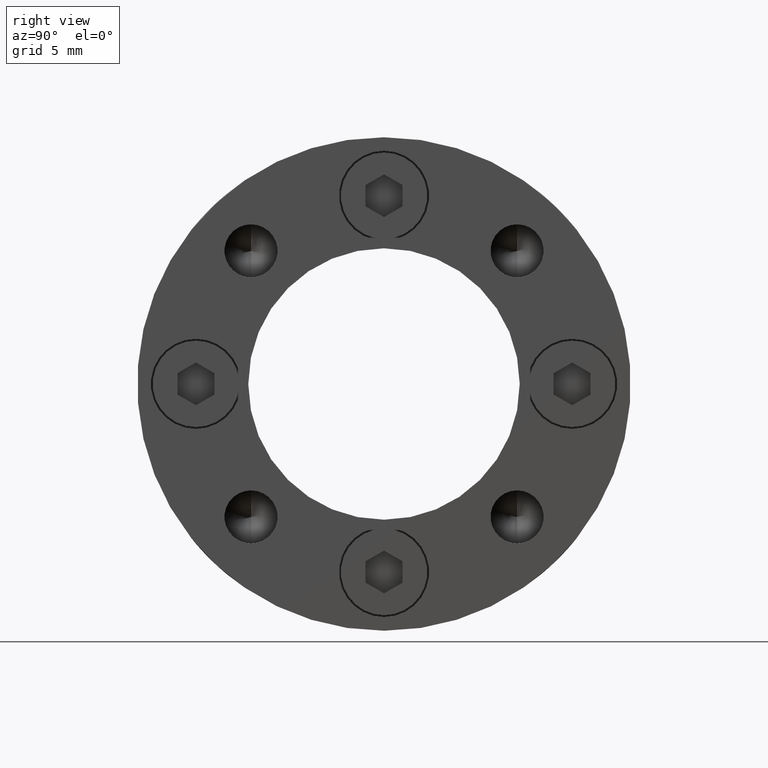
[diagram: clean part render]
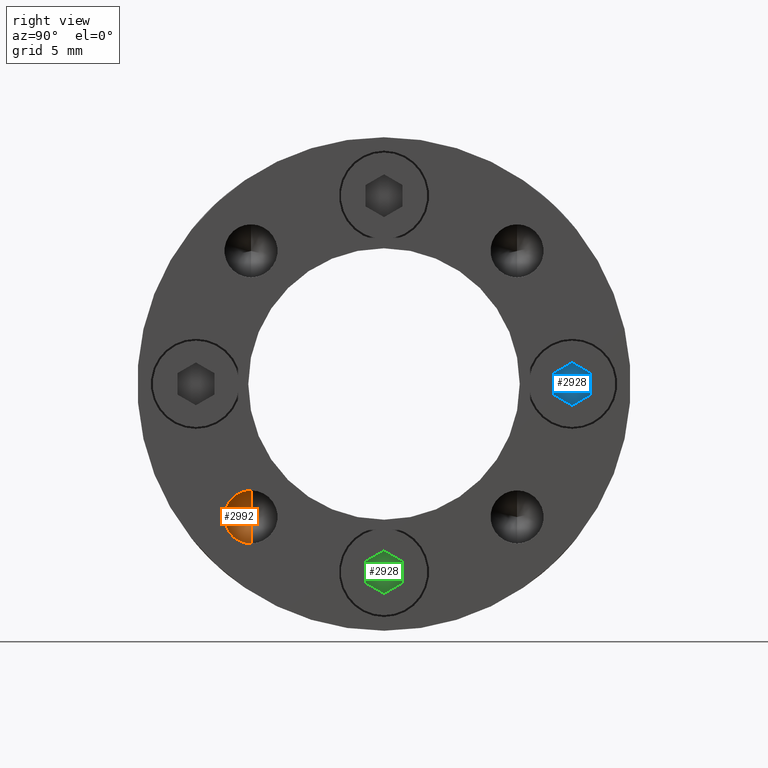
[diagram: same view with three faces highlighted in distinct colors, each labeled with its STEP entity id]
A machine part, right view with three faces highlighted in distinct colors.
Their STEP definitions:

[orange] entity #2992 — the highlighted conical surface has half-angle 59 deg.
#260 = VERTEX_POINT ( 'NONE', #3286 ) ;
#428 = VERTEX_POINT ( 'NONE', #3322 ) ;
#434 = VERTEX_POINT ( 'NONE', #3334 ) ;
#589 = EDGE_CURVE ( 'NONE', #260, #434, #2025, .T. ) ;
#590 = EDGE_CURVE ( 'NONE', #260, #428, #2027, .T. ) ;
#786 = CARTESIAN_POINT ( 'NONE',  ( 14.00000000120371600, -10.78337841309485200, -10.78337841309485200 ) ) ;
#788 = DIRECTION ( 'NONE',  ( 1.000000000000000000, 0.0000000000000000000, -0.0000000000000000000 ) ) ;
#790 = DIRECTION ( 'NONE',  ( 0.0000000000000000000, 0.0000000000000000000, -1.000000000000000000 ) ) ;
#1145 = EDGE_CURVE ( 'NONE', #428, #434, #1649, .T. ) ;
#1267 = ORIENTED_EDGE ( 'NONE', *, *, #590, .T. ) ;
#1284 = ORIENTED_EDGE ( 'NONE', *, *, #589, .F. ) ;
#1303 = ORIENTED_EDGE ( 'NONE', *, *, #1145, .T. ) ;
#1389 = AXIS2_PLACEMENT_3D ( 'NONE', #786, #788, #790 ) ;
#1649 = CIRCLE ( 'NONE', #2335, 2.150000000000000800 ) ;
#1916 = EDGE_LOOP ( 'NONE', ( #1284, #1267, #1303 ) ) ;
#2025 = LINE ( 'NONE', #3164, #2030 ) ;
#2027 = LINE ( 'NONE', #3168, #2032 ) ;
#2030 = VECTOR ( 'NONE', #3196, 1000.000000000000200 ) ;
#2032 = VECTOR ( 'NONE', #3199, 1000.000000000000200 ) ;
#2335 = AXIS2_PLACEMENT_3D ( 'NONE', #2515, #2521, #2520 ) ;
#2515 = CARTESIAN_POINT ( 'NONE',  ( 13.99999999999999500, -10.78337841309485200, -10.78337841309485200 ) ) ;
#2520 = DIRECTION ( 'NONE',  ( 0.0000000000000000000, 0.0000000000000000000, -1.000000000000000000 ) ) ;
#2521 = DIRECTION ( 'NONE',  ( 1.000000000000000000, 0.0000000000000000000, 0.0000000000000000000 ) ) ;
#2797 = FACE_OUTER_BOUND ( 'NONE', #1916, .T. ) ;
#2803 = CONICAL_SURFACE ( 'NONE', #1389, 2.149999999147894400, 1.029744257503080600 ) ;
#2992 = ADVANCED_FACE ( 'NONE', ( #2797 ), #2803, .F. ) ;
#3164 = CARTESIAN_POINT ( 'NONE',  ( 14.00000000120371600, -10.78337841309485200, -12.93337841224274600 ) ) ;
#3168 = CARTESIAN_POINT ( 'NONE',  ( 14.00000000120371600, -10.78337841309485200, -8.633378413946957200 ) ) ;
#3196 = DIRECTION ( 'NONE',  ( 0.5150380759160032600, 0.0000000000000000000, -0.8571673000976770500 ) ) ;
#3199 = DIRECTION ( 'NONE',  ( 0.5150380759160032600, 1.049727190398399000E-016, 0.8571673000976770500 ) ) ;
#3286 = CARTESIAN_POINT ( 'NONE',  ( 12.70814966738953400, -10.78337841306620200, -10.78337841309485200 ) ) ;
#3322 = CARTESIAN_POINT ( 'NONE',  ( 13.99999999999999500, -10.78337841309485200, -8.633378415950284400 ) ) ;
#3334 = CARTESIAN_POINT ( 'NONE',  ( 13.99999999999999500, -10.78337841309485200, -12.93337841023941700 ) ) ;

[blue] entity #2928 — the highlighted planar face has unit normal (-1, 0, 0).
#50 = PLANE ( 'NONE',  #2389 ) ;
#51 = DIRECTION ( 'NONE',  ( 0.0000000000000000000, -0.0000000000000000000, -1.000000000000000000 ) ) ;
#53 = DIRECTION ( 'NONE',  ( 0.0000000000000000000, -1.000000000000000000, 0.0000000000000000000 ) ) ;
#56 = CARTESIAN_POINT ( 'NONE',  ( 1.499999999999999800, 2.000000000000000000, -0.8660254037844389300 ) ) ;
#158 = VERTEX_POINT ( 'NONE', #3235 ) ;
#159 = VERTEX_POINT ( 'NONE', #3238 ) ;
#170 = VERTEX_POINT ( 'NONE', #3229 ) ;
#276 = EDGE_LOOP ( 'NONE', ( #1022, #1051, #1093, #1028, #1097, #1065 ) ) ;
#941 = CARTESIAN_POINT ( 'NONE',  ( -1.499999999999999100, 2.000000000000000000, 0.8660254037844393700 ) ) ;
#944 = DIRECTION ( 'NONE',  ( 3.755786496842897100E-016, 0.0000000000000000000, 1.000000000000000000 ) ) ;
#949 = CARTESIAN_POINT ( 'NONE',  ( -1.499999999999999800, 2.000000000000000000, -0.8660254037844386000 ) ) ;
#958 = CARTESIAN_POINT ( 'NONE',  ( -1.767567020076689400E-016, 2.000000000000000000, -1.732050807568877200 ) ) ;
#977 = DIRECTION ( 'NONE',  ( -0.8660254037844387100, 0.0000000000000000000, -0.4999999999999998300 ) ) ;
#978 = CARTESIAN_POINT ( 'NONE',  ( 1.499999999999999800, 2.000000000000000000, -0.8660254037844389300 ) ) ;
#982 = DIRECTION ( 'NONE',  ( -1.251928832280965900E-016, 0.0000000000000000000, -1.000000000000000000 ) ) ;
#986 = CARTESIAN_POINT ( 'NONE',  ( 1.500000000000000000, 2.000000000000000000, 0.8660254037844387100 ) ) ;
#990 = DIRECTION ( 'NONE',  ( 0.8660254037844386000, 0.0000000000000000000, -0.5000000000000001100 ) ) ;
#991 = CARTESIAN_POINT ( 'NONE',  ( 4.046263255784118500E-016, 2.000000000000000000, 1.732050807568877400 ) ) ;
#995 = DIRECTION ( 'NONE',  ( -0.8660254037844386000, 0.0000000000000000000, 0.5000000000000001100 ) ) ;
#996 = DIRECTION ( 'NONE',  ( 0.8660254037844387100, 0.0000000000000000000, 0.4999999999999998300 ) ) ;
#1022 = ORIENTED_EDGE ( 'NONE', *, *, #2208, .T. ) ;
#1028 = ORIENTED_EDGE ( 'NONE', *, *, #2202, .T. ) ;
#1051 = ORIENTED_EDGE ( 'NONE', *, *, #2198, .T. ) ;
#1065 = ORIENTED_EDGE ( 'NONE', *, *, #2206, .T. ) ;
#1093 = ORIENTED_EDGE ( 'NONE', *, *, #2200, .T. ) ;
#1097 = ORIENTED_EDGE ( 'NONE', *, *, #2204, .T. ) ;
#1341 = VERTEX_POINT ( 'NONE', #2517 ) ;
#1351 = VERTEX_POINT ( 'NONE', #2503 ) ;
#1356 = VERTEX_POINT ( 'NONE', #2497 ) ;
#1673 = LINE ( 'NONE', #958, #1677 ) ;
#1677 = VECTOR ( 'NONE', #995, 1000.000000000000000 ) ;
#1678 = LINE ( 'NONE', #949, #1681 ) ;
#1681 = VECTOR ( 'NONE', #944, 1000.000000000000000 ) ;
#1682 = LINE ( 'NONE', #941, #1685 ) ;
#1685 = VECTOR ( 'NONE', #996, 1000.000000000000100 ) ;
#1686 = LINE ( 'NONE', #991, #1689 ) ;
#1689 = VECTOR ( 'NONE', #990, 1000.000000000000000 ) ;
#1690 = LINE ( 'NONE', #986, #1693 ) ;
#1693 = VECTOR ( 'NONE', #982, 1000.000000000000000 ) ;
#1694 = LINE ( 'NONE', #978, #1697 ) ;
#1697 = VECTOR ( 'NONE', #977, 1000.000000000000000 ) ;
#2198 = EDGE_CURVE ( 'NONE', #159, #1351, #1673, .T. ) ;
#2200 = EDGE_CURVE ( 'NONE', #1351, #1341, #1678, .T. ) ;
#2202 = EDGE_CURVE ( 'NONE', #1341, #1356, #1682, .T. ) ;
#2204 = EDGE_CURVE ( 'NONE', #1356, #170, #1686, .T. ) ;
#2206 = EDGE_CURVE ( 'NONE', #170, #158, #1690, .T. ) ;
#2208 = EDGE_CURVE ( 'NONE', #158, #159, #1694, .T. ) ;
#2389 = AXIS2_PLACEMENT_3D ( 'NONE', #56, #53, #51 ) ;
#2497 = CARTESIAN_POINT ( 'NONE',  ( 4.046263255784118500E-016, 2.000000000000000000, 1.732050807568877400 ) ) ;
#2503 = CARTESIAN_POINT ( 'NONE',  ( -1.499999999999999800, 2.000000000000000000, -0.8660254037844386000 ) ) ;
#2517 = CARTESIAN_POINT ( 'NONE',  ( -1.499999999999999100, 2.000000000000000000, 0.8660254037844393700 ) ) ;
#2664 = FACE_OUTER_BOUND ( 'NONE', #276, .T. ) ;
#2928 = ADVANCED_FACE ( 'NONE', ( #2664 ), #50, .F. ) ;
#3229 = CARTESIAN_POINT ( 'NONE',  ( 1.500000000000000000, 2.000000000000000000, 0.8660254037844387100 ) ) ;
#3235 = CARTESIAN_POINT ( 'NONE',  ( 1.499999999999999800, 2.000000000000000000, -0.8660254037844389300 ) ) ;
#3238 = CARTESIAN_POINT ( 'NONE',  ( -1.767567020076689400E-016, 2.000000000000000000, -1.732050807568877200 ) ) ;

[green] entity #2928 — the highlighted planar face has unit normal (-1, 0, 0).
#50 = PLANE ( 'NONE',  #2389 ) ;
#51 = DIRECTION ( 'NONE',  ( 0.0000000000000000000, -0.0000000000000000000, -1.000000000000000000 ) ) ;
#53 = DIRECTION ( 'NONE',  ( 0.0000000000000000000, -1.000000000000000000, 0.0000000000000000000 ) ) ;
#56 = CARTESIAN_POINT ( 'NONE',  ( 1.499999999999999800, 2.000000000000000000, -0.8660254037844389300 ) ) ;
#158 = VERTEX_POINT ( 'NONE', #3235 ) ;
#159 = VERTEX_POINT ( 'NONE', #3238 ) ;
#170 = VERTEX_POINT ( 'NONE', #3229 ) ;
#276 = EDGE_LOOP ( 'NONE', ( #1022, #1051, #1093, #1028, #1097, #1065 ) ) ;
#941 = CARTESIAN_POINT ( 'NONE',  ( -1.499999999999999100, 2.000000000000000000, 0.8660254037844393700 ) ) ;
#944 = DIRECTION ( 'NONE',  ( 3.755786496842897100E-016, 0.0000000000000000000, 1.000000000000000000 ) ) ;
#949 = CARTESIAN_POINT ( 'NONE',  ( -1.499999999999999800, 2.000000000000000000, -0.8660254037844386000 ) ) ;
#958 = CARTESIAN_POINT ( 'NONE',  ( -1.767567020076689400E-016, 2.000000000000000000, -1.732050807568877200 ) ) ;
#977 = DIRECTION ( 'NONE',  ( -0.8660254037844387100, 0.0000000000000000000, -0.4999999999999998300 ) ) ;
#978 = CARTESIAN_POINT ( 'NONE',  ( 1.499999999999999800, 2.000000000000000000, -0.8660254037844389300 ) ) ;
#982 = DIRECTION ( 'NONE',  ( -1.251928832280965900E-016, 0.0000000000000000000, -1.000000000000000000 ) ) ;
#986 = CARTESIAN_POINT ( 'NONE',  ( 1.500000000000000000, 2.000000000000000000, 0.8660254037844387100 ) ) ;
#990 = DIRECTION ( 'NONE',  ( 0.8660254037844386000, 0.0000000000000000000, -0.5000000000000001100 ) ) ;
#991 = CARTESIAN_POINT ( 'NONE',  ( 4.046263255784118500E-016, 2.000000000000000000, 1.732050807568877400 ) ) ;
#995 = DIRECTION ( 'NONE',  ( -0.8660254037844386000, 0.0000000000000000000, 0.5000000000000001100 ) ) ;
#996 = DIRECTION ( 'NONE',  ( 0.8660254037844387100, 0.0000000000000000000, 0.4999999999999998300 ) ) ;
#1022 = ORIENTED_EDGE ( 'NONE', *, *, #2208, .T. ) ;
#1028 = ORIENTED_EDGE ( 'NONE', *, *, #2202, .T. ) ;
#1051 = ORIENTED_EDGE ( 'NONE', *, *, #2198, .T. ) ;
#1065 = ORIENTED_EDGE ( 'NONE', *, *, #2206, .T. ) ;
#1093 = ORIENTED_EDGE ( 'NONE', *, *, #2200, .T. ) ;
#1097 = ORIENTED_EDGE ( 'NONE', *, *, #2204, .T. ) ;
#1341 = VERTEX_POINT ( 'NONE', #2517 ) ;
#1351 = VERTEX_POINT ( 'NONE', #2503 ) ;
#1356 = VERTEX_POINT ( 'NONE', #2497 ) ;
#1673 = LINE ( 'NONE', #958, #1677 ) ;
#1677 = VECTOR ( 'NONE', #995, 1000.000000000000000 ) ;
#1678 = LINE ( 'NONE', #949, #1681 ) ;
#1681 = VECTOR ( 'NONE', #944, 1000.000000000000000 ) ;
#1682 = LINE ( 'NONE', #941, #1685 ) ;
#1685 = VECTOR ( 'NONE', #996, 1000.000000000000100 ) ;
#1686 = LINE ( 'NONE', #991, #1689 ) ;
#1689 = VECTOR ( 'NONE', #990, 1000.000000000000000 ) ;
#1690 = LINE ( 'NONE', #986, #1693 ) ;
#1693 = VECTOR ( 'NONE', #982, 1000.000000000000000 ) ;
#1694 = LINE ( 'NONE', #978, #1697 ) ;
#1697 = VECTOR ( 'NONE', #977, 1000.000000000000000 ) ;
#2198 = EDGE_CURVE ( 'NONE', #159, #1351, #1673, .T. ) ;
#2200 = EDGE_CURVE ( 'NONE', #1351, #1341, #1678, .T. ) ;
#2202 = EDGE_CURVE ( 'NONE', #1341, #1356, #1682, .T. ) ;
#2204 = EDGE_CURVE ( 'NONE', #1356, #170, #1686, .T. ) ;
#2206 = EDGE_CURVE ( 'NONE', #170, #158, #1690, .T. ) ;
#2208 = EDGE_CURVE ( 'NONE', #158, #159, #1694, .T. ) ;
#2389 = AXIS2_PLACEMENT_3D ( 'NONE', #56, #53, #51 ) ;
#2497 = CARTESIAN_POINT ( 'NONE',  ( 4.046263255784118500E-016, 2.000000000000000000, 1.732050807568877400 ) ) ;
#2503 = CARTESIAN_POINT ( 'NONE',  ( -1.499999999999999800, 2.000000000000000000, -0.8660254037844386000 ) ) ;
#2517 = CARTESIAN_POINT ( 'NONE',  ( -1.499999999999999100, 2.000000000000000000, 0.8660254037844393700 ) ) ;
#2664 = FACE_OUTER_BOUND ( 'NONE', #276, .T. ) ;
#2928 = ADVANCED_FACE ( 'NONE', ( #2664 ), #50, .F. ) ;
#3229 = CARTESIAN_POINT ( 'NONE',  ( 1.500000000000000000, 2.000000000000000000, 0.8660254037844387100 ) ) ;
#3235 = CARTESIAN_POINT ( 'NONE',  ( 1.499999999999999800, 2.000000000000000000, -0.8660254037844389300 ) ) ;
#3238 = CARTESIAN_POINT ( 'NONE',  ( -1.767567020076689400E-016, 2.000000000000000000, -1.732050807568877200 ) ) ;